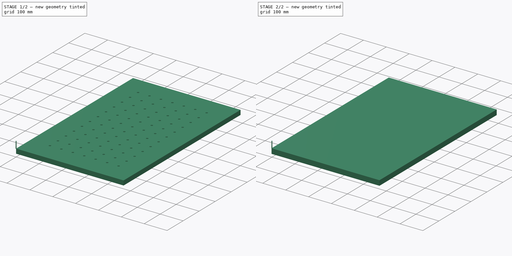
[diagram: build sequence overview — one tinted view per stage of 2, left to right]
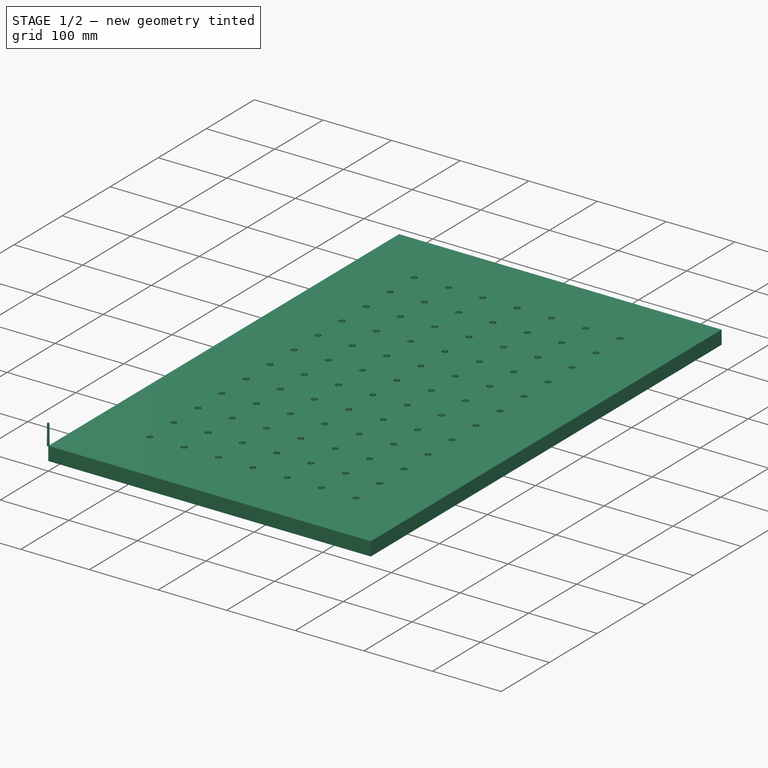
[diagram: stage 1 of 2 — iso view after this stage's code; geometry added in this stage tinted green]
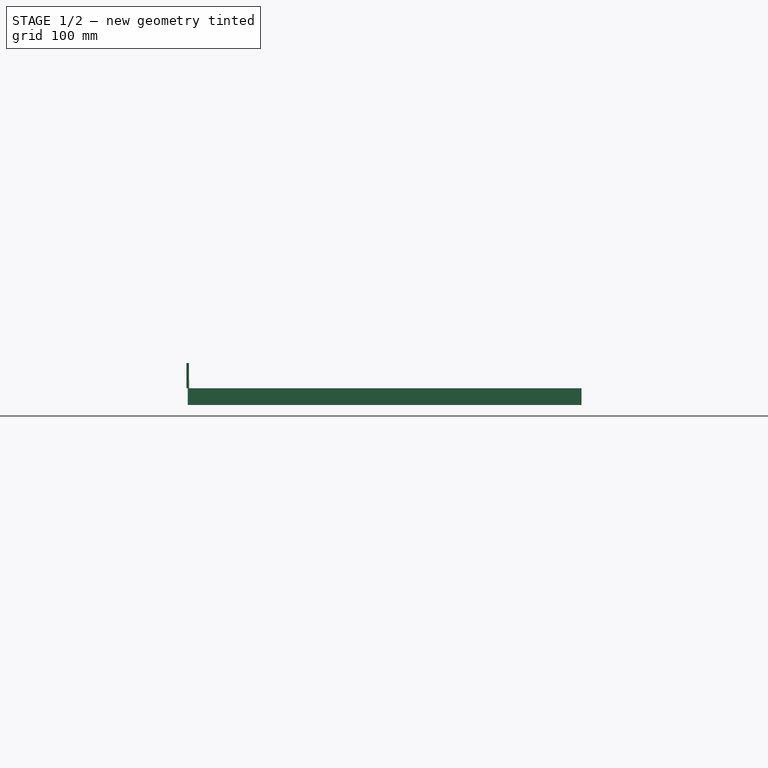
[diagram: stage 1 of 2 — front view after this stage's code; geometry added in this stage tinted green]
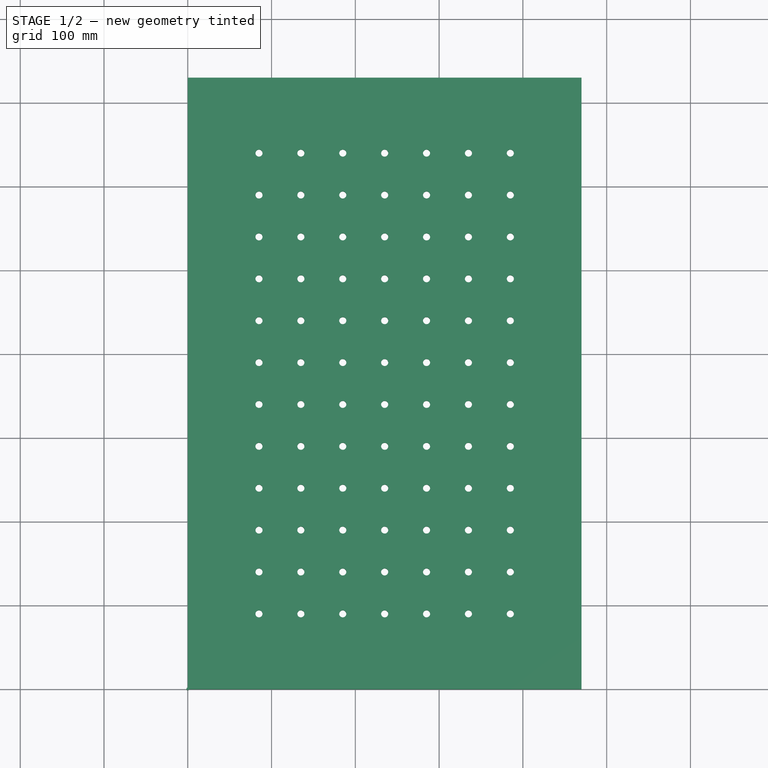
[diagram: stage 1 of 2 — top view after this stage's code; geometry added in this stage tinted green]
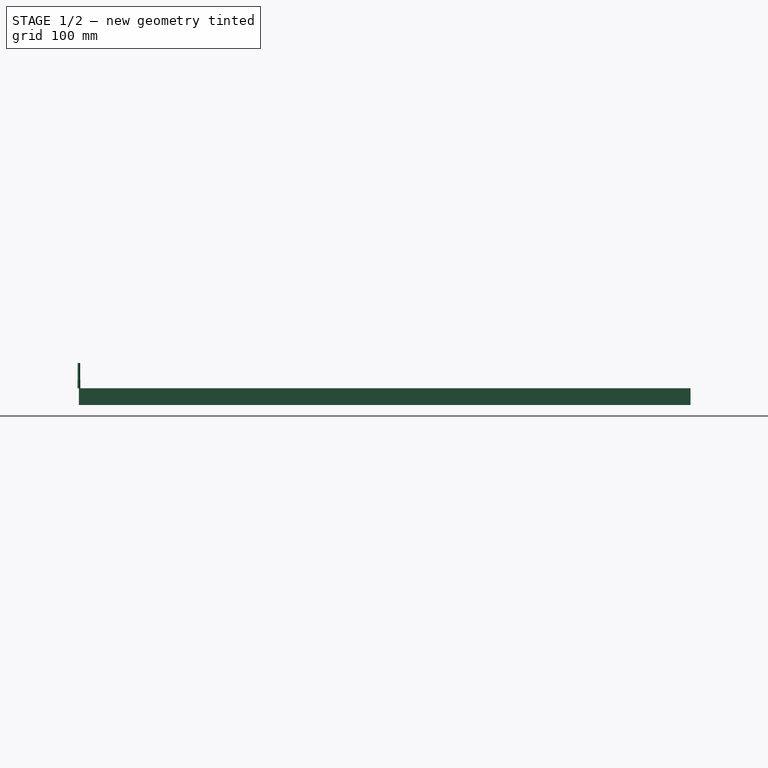
[diagram: stage 1 of 2 — right view after this stage's code; geometry added in this stage tinted green]
FCSTD DOCUMENT  (FreeCAD 0.20R29410 (Git))
Label: table_holes
License: All rights reserved
LicenseURL: http://en.wikipedia.org/wiki/All_rights_reserved
objects: Part::FeaturePython×3, App::DocumentObjectGroup×3, Path::FeaturePython×3, Sketcher::SketchObject×1, PartDesign::Pad×1, PartDesign::Body×1, App::FeaturePython×1
note: 8 computed .brp shape members not serialized (recipe doc carries the construction recipe); baked Part::Feature solids carry a one-line shape summary decoded from their .brp

FEATURE [Sketcher::SketchObject] Sketch
  FullyConstrained = true
  MapMode = 5
  Support = -> [XY_Plane]
  sketch-geometry (171):
    g0: LineSegment StartX=0 StartY=0 StartZ=0 EndX=470 EndY=0 EndZ=0
    g1: LineSegment StartX=470 StartY=0 StartZ=0 EndX=470 EndY=730 EndZ=0
    g2: LineSegment StartX=470 StartY=730 StartZ=0 EndX=0 EndY=730 EndZ=0
    g3: LineSegment StartX=0 StartY=730 StartZ=0 EndX=0 EndY=0 EndZ=0
    g4: Circle CenterX=85 CenterY=640 CenterZ=0 NormalX=0 NormalY=0 NormalZ=1 AngleXU=0 Radius=4.25
    g5: Circle CenterX=135 CenterY=640 CenterZ=0 NormalX=0 NormalY=0 NormalZ=1 AngleXU=0 Radius=4.25
    g6: LineSegment StartX=85 StartY=640 StartZ=0 EndX=135 EndY=640 EndZ=0
    g7: Circle CenterX=185 CenterY=640 CenterZ=0 NormalX=0 NormalY=0 NormalZ=1 AngleXU=0 Radius=4.25
    g8: LineSegment StartX=135 StartY=640 StartZ=0 EndX=185 EndY=640 EndZ=0
    g9: Circle CenterX=235 CenterY=640 CenterZ=0 NormalX=0 NormalY=0 NormalZ=1 AngleXU=0 Radius=4.25
    g10: LineSegment StartX=185 StartY=640 StartZ=0 EndX=235 EndY=640 EndZ=0
    g11: Circle CenterX=285 CenterY=640 CenterZ=0 NormalX=0 NormalY=0 NormalZ=1 AngleXU=0 Radius=4.25
    g12: LineSegment StartX=235 StartY=640 StartZ=0 EndX=285 EndY=640 EndZ=0
    g13: Circle CenterX=335 CenterY=640 CenterZ=0 NormalX=0 NormalY=0 NormalZ=1 AngleXU=0 Radius=4.25
    g14: LineSegment StartX=285 StartY=640 StartZ=0 EndX=335 EndY=640 EndZ=0
    g15: Circle CenterX=385 CenterY=640 CenterZ=0 NormalX=0 NormalY=0 NormalZ=1 AngleXU=0 Radius=4.25
    g16: LineSegment StartX=335 StartY=640 StartZ=0 EndX=385 EndY=640 EndZ=0
    g17: Circle CenterX=85 CenterY=590 CenterZ=0 NormalX=0 NormalY=0 NormalZ=1 AngleXU=0 Radius=4.25
    g18: LineSegment StartX=85 StartY=640 StartZ=0 EndX=85 EndY=590 EndZ=0
    g19: Circle CenterX=135 CenterY=590 CenterZ=0 NormalX=0 NormalY=0 NormalZ=1 AngleXU=0 Radius=4.25
    g20: LineSegment StartX=85 StartY=590 StartZ=0 EndX=135 EndY=590 EndZ=0
    g21: Circle CenterX=185 CenterY=590 CenterZ=0 NormalX=0 NormalY=0 NormalZ=1 AngleXU=0 Radius=4.25
    g22: LineSegment StartX=135 StartY=590 StartZ=0 EndX=185 EndY=590 EndZ=0
    g23: Circle CenterX=235 CenterY=590 CenterZ=0 NormalX=0 NormalY=0 NormalZ=1 AngleXU=0 Radius=4.25
    g24: LineSegment StartX=185 StartY=590 StartZ=0 EndX=235 EndY=590 EndZ=0
    g25: Circle CenterX=285 CenterY=590 CenterZ=0 NormalX=0 NormalY=0 NormalZ=1 AngleXU=0 Radius=4.25
    g26: LineSegment StartX=235 StartY=590 StartZ=0 EndX=285 EndY=590 EndZ=0
    g27: Circle CenterX=335 CenterY=590 CenterZ=0 NormalX=0 NormalY=0 NormalZ=1 AngleXU=0 Radius=4.25
    g28: LineSegment StartX=285 StartY=590 StartZ=0 EndX=335 EndY=590 EndZ=0
    g29: Circle CenterX=385 CenterY=590 CenterZ=0 NormalX=0 NormalY=0 NormalZ=1 AngleXU=0 Radius=4.25
    g30: LineSegment StartX=335 StartY=590 StartZ=0 EndX=385 EndY=590 EndZ=0
    g31: Circle CenterX=85 CenterY=540 CenterZ=0 NormalX=0 NormalY=0 NormalZ=1 AngleXU=0 Radius=4.25
    g32: LineSegment StartX=85 StartY=590 StartZ=0 EndX=85 EndY=540 EndZ=0
    g33: Circle CenterX=135 CenterY=540 CenterZ=0 NormalX=0 NormalY=0 NormalZ=1 AngleXU=0 Radius=4.25
    g34: LineSegment StartX=85 StartY=540 StartZ=0 EndX=135 EndY=540 EndZ=0
    g35: Circle CenterX=185 CenterY=540 CenterZ=0 NormalX=0 NormalY=0 NormalZ=1 AngleXU=0 Radius=4.25
    g36: LineSegment StartX=135 StartY=540 StartZ=0 EndX=185 EndY=540 EndZ=0
    g37: Circle CenterX=235 CenterY=540 CenterZ=0 NormalX=0 NormalY=0 NormalZ=1 AngleXU=0 Radius=4.25
    g38: LineSegment StartX=185 StartY=540 StartZ=0 EndX=235 EndY=540 EndZ=0
    g39: Circle CenterX=285 CenterY=540 CenterZ=0 NormalX=0 NormalY=0 NormalZ=1 AngleXU=0 Radius=4.25
    g40: LineSegment StartX=235 StartY=540 StartZ=0 EndX=285 EndY=540 EndZ=0
    g41: Circle CenterX=335 CenterY=540 CenterZ=0 NormalX=0 NormalY=0 NormalZ=1 AngleXU=0 Radius=4.25
    g42: LineSegment StartX=285 StartY=540 StartZ=0 EndX=335 EndY=540 EndZ=0
    g43: Circle CenterX=385 CenterY=540 CenterZ=0 NormalX=0 NormalY=0 NormalZ=1 AngleXU=0 Radius=4.25
    g44: LineSegment StartX=335 StartY=540 StartZ=0 EndX=385 EndY=540 EndZ=0
    g45: Circle CenterX=85 CenterY=490 CenterZ=0 NormalX=0 NormalY=0 NormalZ=1 AngleXU=0 Radius=4.25
    g46: LineSegment StartX=85 StartY=540 StartZ=0 EndX=85 EndY=490 EndZ=0
    g47: Circle CenterX=135 CenterY=490 CenterZ=0 NormalX=0 NormalY=0 NormalZ=1 AngleXU=0 Radius=4.25
    g48: LineSegment StartX=85 StartY=490 StartZ=0 EndX=135 EndY=490 EndZ=0
    g49: Circle CenterX=185 CenterY=490 CenterZ=0 NormalX=0 NormalY=0 NormalZ=1 AngleXU=0 Radius=4.25
    g50: LineSegment StartX=135 StartY=490 StartZ=0 EndX=185 EndY=490 EndZ=0
    g51: Circle CenterX=235 CenterY=490 CenterZ=0 NormalX=0 NormalY=0 NormalZ=1 AngleXU=0 Radius=4.25
    g52: LineSegment StartX=185 StartY=490 StartZ=0 EndX=235 EndY=490 EndZ=0
    g53: Circle CenterX=285 CenterY=490 CenterZ=0 NormalX=0 NormalY=0 NormalZ=1 AngleXU=0 Radius=4.25
    g54: LineSegment StartX=235 StartY=490 StartZ=0 EndX=285 EndY=490 EndZ=0
    g55: Circle CenterX=335 CenterY=490 CenterZ=0 NormalX=0 NormalY=0 NormalZ=1 AngleXU=0 Radius=4.25
    g56: LineSegment StartX=285 StartY=490 StartZ=0 EndX=335 EndY=490 EndZ=0
    g57: Circle CenterX=385 CenterY=490 CenterZ=0 NormalX=0 NormalY=0 NormalZ=1 AngleXU=0 Radius=4.25
    g58: LineSegment StartX=335 StartY=490 StartZ=0 EndX=385 EndY=490 EndZ=0
    g59: Circle CenterX=85 CenterY=440 CenterZ=0 NormalX=0 NormalY=0 NormalZ=1 AngleXU=0 Radius=4.25
    g60: LineSegment StartX=85 StartY=490 StartZ=0 EndX=85 EndY=440 EndZ=0
    g61: Circle CenterX=135 CenterY=440 CenterZ=0 NormalX=0 NormalY=0 NormalZ=1 AngleXU=0 Radius=4.25
    g62: LineSegment StartX=85 StartY=440 StartZ=0 EndX=135 EndY=440 EndZ=0
    g63: Circle CenterX=185 CenterY=440 CenterZ=0 NormalX=0 NormalY=0 NormalZ=1 AngleXU=0 Radius=4.25
    g64: LineSegment StartX=135 StartY=440 StartZ=0 EndX=185 EndY=440 EndZ=0
    g65: Circle CenterX=235 CenterY=440 CenterZ=0 NormalX=0 NormalY=0 NormalZ=1 AngleXU=0 Radius=4.25
    g66: LineSegment StartX=185 StartY=440 StartZ=0 EndX=235 EndY=440 EndZ=0
    g67: Circle CenterX=285 CenterY=440 CenterZ=0 NormalX=0 NormalY=0 NormalZ=1 AngleXU=0 Radius=4.25
    g68: LineSegment StartX=235 StartY=440 StartZ=0 EndX=285 EndY=440 EndZ=0
    g69: Circle CenterX=335 CenterY=440 CenterZ=0 NormalX=0 NormalY=0 NormalZ=1 AngleXU=0 Radius=4.25
    g70: LineSegment StartX=285 StartY=440 StartZ=0 EndX=335 EndY=440 EndZ=0
    g71: Circle CenterX=385 CenterY=440 CenterZ=0 NormalX=0 NormalY=0 NormalZ=1 AngleXU=0 Radius=4.25
    g72: LineSegment StartX=335 StartY=440 StartZ=0 EndX=385 EndY=440 EndZ=0
    g73: Circle CenterX=85 CenterY=390 CenterZ=0 NormalX=0 NormalY=0 NormalZ=1 AngleXU=0 Radius=4.25
    g74: LineSegment StartX=85 StartY=440 StartZ=0 EndX=85 EndY=390 EndZ=0
    g75: Circle CenterX=135 CenterY=390 CenterZ=0 NormalX=0 NormalY=0 NormalZ=1 AngleXU=0 Radius=4.25
    g76: LineSegment StartX=85 StartY=390 StartZ=0 EndX=135 EndY=390 EndZ=0
    g77: Circle CenterX=185 CenterY=390 CenterZ=0 NormalX=0 NormalY=0 NormalZ=1 AngleXU=0 Radius=4.25
    g78: LineSegment StartX=135 StartY=390 StartZ=0 EndX=185 EndY=390 EndZ=0
    g79: Circle CenterX=235 CenterY=390 CenterZ=0 NormalX=0 NormalY=0 NormalZ=1 AngleXU=0 Radius=4.25
    g80: LineSegment StartX=185 StartY=390 StartZ=0 EndX=235 EndY=390 EndZ=0
    g81: Circle CenterX=285 CenterY=390 CenterZ=0 NormalX=0 NormalY=0 NormalZ=1 AngleXU=0 Radius=4.25
    g82: LineSegment StartX=235 StartY=390 StartZ=0 EndX=285 EndY=390 EndZ=0
    g83: Circle CenterX=335 CenterY=390 CenterZ=0 NormalX=0 NormalY=0 NormalZ=1 AngleXU=0 Radius=4.25
    g84: LineSegment StartX=285 StartY=390 StartZ=0 EndX=335 EndY=390 EndZ=0
    g85: Circle CenterX=385 CenterY=390 CenterZ=0 NormalX=0 NormalY=0 NormalZ=1 AngleXU=0 Radius=4.25
    g86: LineSegment StartX=335 StartY=390 StartZ=0 EndX=385 EndY=390 EndZ=0
    g87: Circle CenterX=85 CenterY=340 CenterZ=0 NormalX=0 NormalY=0 NormalZ=1 AngleXU=0 Radius=4.25
    g88: LineSegment StartX=85 StartY=390 StartZ=0 EndX=85 EndY=340 EndZ=0
    g89: Circle CenterX=135 CenterY=340 CenterZ=0 NormalX=0 NormalY=0 NormalZ=1 AngleXU=0 Radius=4.25
    g90: LineSegment StartX=85 StartY=340 StartZ=0 EndX=135 EndY=340 EndZ=0
    g91: Circle CenterX=185 CenterY=340 CenterZ=0 NormalX=0 NormalY=0 NormalZ=1 AngleXU=0 Radius=4.25
    g92: LineSegment StartX=135 StartY=340 StartZ=0 EndX=185 EndY=340 EndZ=0
    g93: Circle CenterX=235 CenterY=340 CenterZ=0 NormalX=0 NormalY=0 NormalZ=1 AngleXU=0 Radius=4.25
    g94: LineSegment StartX=185 StartY=340 StartZ=0 EndX=235 EndY=340 EndZ=0
    g95: Circle CenterX=285 CenterY=340 CenterZ=0 NormalX=0 NormalY=0 NormalZ=1 AngleXU=0 Radius=4.25
    g96: LineSegment StartX=235 StartY=340 StartZ=0 EndX=285 EndY=340 EndZ=0
    g97: Circle CenterX=335 CenterY=340 CenterZ=0 NormalX=0 NormalY=0 NormalZ=1 AngleXU=0 Radius=4.25
    g98: LineSegment StartX=285 StartY=340 StartZ=0 EndX=335 EndY=340 EndZ=0
    g99: Circle CenterX=385 CenterY=340 CenterZ=0 NormalX=0 NormalY=0 NormalZ=1 AngleXU=0 Radius=4.25
    g100: LineSegment StartX=335 StartY=340 StartZ=0 EndX=385 EndY=340 EndZ=0
    g101: Circle CenterX=85 CenterY=290 CenterZ=0 NormalX=0 NormalY=0 NormalZ=1 AngleXU=0 Radius=4.25
    g102: LineSegment StartX=85 StartY=340 StartZ=0 EndX=85 EndY=290 EndZ=0
    g103: Circle CenterX=135 CenterY=290 CenterZ=0 NormalX=0 NormalY=0 NormalZ=1 AngleXU=0 Radius=4.25
    g104: LineSegment StartX=85 StartY=290 StartZ=0 EndX=135 EndY=290 EndZ=0
    g105: Circle CenterX=185 CenterY=290 CenterZ=0 NormalX=0 NormalY=0 NormalZ=1 AngleXU=0 Radius=4.25
    g106: LineSegment StartX=135 StartY=290 StartZ=0 EndX=185 EndY=290 EndZ=0
    g107: Circle CenterX=235 CenterY=290 CenterZ=0 NormalX=0 NormalY=0 NormalZ=1 AngleXU=0 Radius=4.25
    g108: LineSegment StartX=185 StartY=290 StartZ=0 EndX=235 EndY=290 EndZ=0
    g109: Circle CenterX=285 CenterY=290 CenterZ=0 NormalX=0 NormalY=0 NormalZ=1 AngleXU=0 Radius=4.25
    g110: LineSegment StartX=235 StartY=290 StartZ=0 EndX=285 EndY=290 EndZ=0
    g111: Circle CenterX=335 CenterY=290 CenterZ=0 NormalX=0 NormalY=0 NormalZ=1 AngleXU=0 Radius=4.25
    g112: LineSegment StartX=285 StartY=290 StartZ=0 EndX=335 EndY=290 EndZ=0
    g113: Circle CenterX=385 CenterY=290 CenterZ=0 NormalX=0 NormalY=0 NormalZ=1 AngleXU=0 Radius=4.25
    g114: LineSegment StartX=335 StartY=290 StartZ=0 EndX=385 EndY=290 EndZ=0
    g115: Circle CenterX=85 CenterY=240 CenterZ=0 NormalX=0 NormalY=0 NormalZ=1 AngleXU=0 Radius=4.25
    g116: LineSegment StartX=85 StartY=290 StartZ=0 EndX=85 EndY=240 EndZ=0
    g117: Circle CenterX=135 CenterY=240 CenterZ=0 NormalX=0 NormalY=0 NormalZ=1 AngleXU=0 Radius=4.25
    g118: LineSegment StartX=85 StartY=240 StartZ=0 EndX=135 EndY=240 EndZ=0
    g119: Circle CenterX=185 CenterY=240 CenterZ=0 NormalX=0 NormalY=0 NormalZ=1 AngleXU=0 Radius=4.25
    g120: LineSegment StartX=135 StartY=240 StartZ=0 EndX=185 EndY=240 EndZ=0
    g121: Circle CenterX=235 CenterY=240 CenterZ=0 NormalX=0 NormalY=0 NormalZ=1 AngleXU=0 Radius=4.25
    g122: LineSegment StartX=185 StartY=240 StartZ=0 EndX=235 EndY=240 EndZ=0
    g123: Circle CenterX=285 CenterY=240 CenterZ=0 NormalX=0 NormalY=0 NormalZ=1 AngleXU=0 Radius=4.25
    g124: LineSegment StartX=235 StartY=240 StartZ=0 EndX=285 EndY=240 EndZ=0
    g125: Circle CenterX=335 CenterY=240 CenterZ=0 NormalX=0 NormalY=0 NormalZ=1 AngleXU=0 Radius=4.25
    g126: LineSegment StartX=285 StartY=240 StartZ=0 EndX=335 EndY=240 EndZ=0
    g127: Circle CenterX=385 CenterY=240 CenterZ=0 NormalX=0 NormalY=0 NormalZ=1 AngleXU=0 Radius=4.25
    g128: LineSegment StartX=335 StartY=240 StartZ=0 EndX=385 EndY=240 EndZ=0
    g129: Circle CenterX=85 CenterY=190 CenterZ=0 NormalX=0 NormalY=0 NormalZ=1 AngleXU=0 Radius=4.25
    g130: LineSegment StartX=85 StartY=240 StartZ=0 EndX=85 EndY=190 EndZ=0
    g131: Circle CenterX=135 CenterY=190 CenterZ=0 NormalX=0 NormalY=0 NormalZ=1 AngleXU=0 Radius=4.25
    g132: LineSegment StartX=85 StartY=190 StartZ=0 EndX=135 EndY=190 EndZ=0
    g133: Circle CenterX=185 CenterY=190 CenterZ=0 NormalX=0 NormalY=0 NormalZ=1 AngleXU=0 Radius=4.25
    g134: LineSegment StartX=135 StartY=190 StartZ=0 EndX=185 EndY=190 EndZ=0
    g135: Circle CenterX=235 CenterY=190 CenterZ=0 NormalX=0 NormalY=0 NormalZ=1 AngleXU=0 Radius=4.25
    g136: LineSegment StartX=185 StartY=190 StartZ=0 EndX=235 EndY=190 EndZ=0
    g137: Circle CenterX=285 CenterY=190 CenterZ=0 NormalX=0 NormalY=0 NormalZ=1 AngleXU=0 Radius=4.25
    g138: LineSegment StartX=235 StartY=190 StartZ=0 EndX=285 EndY=190 EndZ=0
    g139: Circle CenterX=335 CenterY=190 CenterZ=0 NormalX=0 NormalY=0 NormalZ=1 AngleXU=0 Radius=4.25
    g140: LineSegment StartX=285 StartY=190 StartZ=0 EndX=335 EndY=190 EndZ=0
    g141: Circle CenterX=385 CenterY=190 CenterZ=0 NormalX=0 NormalY=0 NormalZ=1 AngleXU=0 Radius=4.25
    g142: LineSegment StartX=335 StartY=190 StartZ=0 EndX=385 EndY=190 EndZ=0
    g143: Circle CenterX=85 CenterY=140 CenterZ=0 NormalX=0 NormalY=0 NormalZ=1 AngleXU=0 Radius=4.25
    g144: LineSegment StartX=85 StartY=190 StartZ=0 EndX=85 EndY=140 EndZ=0
    g145: Circle CenterX=135 CenterY=140 CenterZ=0 NormalX=0 NormalY=0 NormalZ=1 AngleXU=0 Radius=4.25
    g146: LineSegment StartX=85 StartY=140 StartZ=0 EndX=135 EndY=140 EndZ=0
    g147: Circle CenterX=185 CenterY=140 CenterZ=0 NormalX=0 NormalY=0 NormalZ=1 AngleXU=0 Radius=4.25
    g148: LineSegment StartX=135 StartY=140 StartZ=0 EndX=185 EndY=140 EndZ=0
    g149: Circle CenterX=235 CenterY=140 CenterZ=0 NormalX=0 NormalY=0 NormalZ=1 AngleXU=0 Radius=4.25
    g150: LineSegment StartX=185 StartY=140 StartZ=0 EndX=235 EndY=140 EndZ=0
    g151: Circle CenterX=285 CenterY=140 CenterZ=0 NormalX=0 NormalY=0 NormalZ=1 AngleXU=0 Radius=4.25
    g152: LineSegment StartX=235 StartY=140 StartZ=0 EndX=285 EndY=140 EndZ=0
    g153: Circle CenterX=335 CenterY=140 CenterZ=0 NormalX=0 NormalY=0 NormalZ=1 AngleXU=0 Radius=4.25
    g154: LineSegment StartX=285 StartY=140 StartZ=0 EndX=335 EndY=140 EndZ=0
    g155: Circle CenterX=385 CenterY=140 CenterZ=0 NormalX=0 NormalY=0 NormalZ=1 AngleXU=0 Radius=4.25
    g156: LineSegment StartX=335 StartY=140 StartZ=0 EndX=385 EndY=140 EndZ=0
    g157: Circle CenterX=85 CenterY=90 CenterZ=0 NormalX=0 NormalY=0 NormalZ=1 AngleXU=0 Radius=4.25
    g158: LineSegment StartX=85 StartY=140 StartZ=0 EndX=85 EndY=90 EndZ=0
    g159: Circle CenterX=135 CenterY=90 CenterZ=0 NormalX=0 NormalY=0 NormalZ=1 AngleXU=0 Radius=4.25
    g160: LineSegment StartX=85 StartY=90 StartZ=0 EndX=135 EndY=90 EndZ=0
    g161: Circle CenterX=185 CenterY=90 CenterZ=0 NormalX=0 NormalY=0 NormalZ=1 AngleXU=0 Radius=4.25
    g162: LineSegment StartX=135 StartY=90 StartZ=0 EndX=185 EndY=90 EndZ=0
    g163: Circle CenterX=235 CenterY=90 CenterZ=0 NormalX=0 NormalY=0 NormalZ=1 AngleXU=0 Radius=4.25
    g164: LineSegment StartX=185 StartY=90 StartZ=0 EndX=235 EndY=90 EndZ=0
    g165: Circle CenterX=285 CenterY=90 CenterZ=0 NormalX=0 NormalY=0 NormalZ=1 AngleXU=0 Radius=4.25
    g166: LineSegment StartX=235 StartY=90 StartZ=0 EndX=285 EndY=90 EndZ=0
    g167: Circle CenterX=335 CenterY=90 CenterZ=0 NormalX=0 NormalY=0 NormalZ=1 AngleXU=0 Radius=4.25
    g168: LineSegment StartX=285 StartY=90 StartZ=0 EndX=335 EndY=90 EndZ=0
    g169: Circle CenterX=385 CenterY=90 CenterZ=0 NormalX=0 NormalY=0 NormalZ=1 AngleXU=0 Radius=4.25
    g170: LineSegment StartX=335 StartY=90 StartZ=0 EndX=385 EndY=90 EndZ=0
  constraints (429):
    c: Coincident(g0,g1)
    c: Coincident(g1,g2)
    c: Coincident(g2,g3)
    c: Coincident(g3,g0)
    c: Horizontal(g0)
    c: Horizontal(g2)
    c: Vertical(g1)
    c: Vertical(g3)
    c: Coincident(g0,g-1)
    c: DistanceY(g1,g1) = 730
    c: DistanceX(g2,g2) = 470
    c: DistanceX(g0,g4) = 85
    c: Diameter(g4) = 8.5
    c: DistanceY(g4,g2) = 90
    c: Diameter(g5) = 8.5
    c: Coincident(g4,g6)
    c: Coincident(g5,g6)
    c: Distance(g6) = 50
    c: Angle(g6) = 0
    c: Diameter(g7) = 8.5
    c: Coincident(g5,g8)
    c: Coincident(g7,g8)
    c: Equal(g6,g8)
    c: Parallel(g8,g6)
    c: Diameter(g9) = 8.5
    c: Coincident(g7,g10)
    c: Coincident(g9,g10)
    c: Equal(g6,g10)
    c: Parallel(g10,g6)
    c: Diameter(g11) = 8.5
    c: Coincident(g9,g12)
    c: Coincident(g11,g12)
    c: Equal(g6,g12)
    c: Parallel(g12,g6)
    c: Diameter(g13) = 8.5
    c: Coincident(g11,g14)
    c: Coincident(g13,g14)
    c: Equal(g6,g14)
    c: Parallel(g14,g6)
    c: Diameter(g15) = 8.5
    c: Coincident(g13,g16)
    c: Coincident(g15,g16)
    c: Equal(g6,g16)
    c: Parallel(g16,g6)
    c: Diameter(g17) = 8.5
    c: Coincident(g4,g18)
    c: Coincident(g17,g18)
    c: Equal(g18,g6)
    c: Perpendicular(g18,g6)
    c: Diameter(g19) = 8.5
    c: Coincident(g17,g20)
    c: Coincident(g19,g20)
    c: Equal(g6,g20)
    c: Parallel(g20,g6)
    c: Diameter(g21) = 8.5
    c: Coincident(g19,g22)
    c: Coincident(g21,g22)
    c: Equal(g6,g22)
    c: Parallel(g22,g6)
    c: Diameter(g23) = 8.5
    c: Coincident(g21,g24)
    c: Coincident(g23,g24)
    c: Equal(g6,g24)
    c: Parallel(g24,g6)
    c: Diameter(g25) = 8.5
    c: Coincident(g23,g26)
    c: Coincident(g25,g26)
    c: Equal(g6,g26)
    c: Parallel(g26,g6)
    c: Diameter(g27) = 8.5
    c: Coincident(g25,g28)
    c: Coincident(g27,g28)
    c: Equal(g6,g28)
    c: Parallel(g28,g6)
    c: Diameter(g29) = 8.5
    c: Coincident(g27,g30)
    c: Coincident(g29,g30)
    c: Equal(g6,g30)
    c: Parallel(g30,g6)
    c: Diameter(g31) = 8.5
    c: Coincident(g17,g32)
    c: Coincident(g31,g32)
    c: Equal(g18,g32)
    c: Perpendicular(g32,g6)
    c: Diameter(g33) = 8.5
    c: Coincident(g31,g34)
    c: Coincident(g33,g34)
    c: Equal(g6,g34)
    c: Parallel(g34,g6)
    c: Diameter(g35) = 8.5
    c: Coincident(g33,g36)
    c: Coincident(g35,g36)
    c: Equal(g6,g36)
    c: Parallel(g36,g6)
    c: Diameter(g37) = 8.5
    c: Coincident(g35,g38)
    c: Coincident(g37,g38)
    c: Equal(g6,g38)
    c: Parallel(g38,g6)
    c: Diameter(g39) = 8.5
    c: Coincident(g37,g40)
    c: Coincident(g39,g40)
    c: Equal(g6,g40)
    c: Parallel(g40,g6)
    c: Diameter(g41) = 8.5
    c: Coincident(g39,g42)
    c: Coincident(g41,g42)
    c: Equal(g6,g42)
    c: Parallel(g42,g6)
    c: Diameter(g43) = 8.5
    c: Coincident(g41,g44)
    c: Coincident(g43,g44)
    c: Equal(g6,g44)
    c: Parallel(g44,g6)
    c: Diameter(g45) = 8.5
    c: Coincident(g31,g46)
    c: Coincident(g45,g46)
    c: Equal(g18,g46)
    c: Perpendicular(g46,g6)
    c: Diameter(g47) = 8.5
    c: Coincident(g45,g48)
    c: Coincident(g47,g48)
    c: Equal(g6,g48)
    c: Parallel(g48,g6)
    c: Diameter(g49) = 8.5
    c: Coincident(g47,g50)
    c: Coincident(g49,g50)
    c: Equal(g6,g50)
    c: Parallel(g50,g6)
    c: Diameter(g51) = 8.5
    c: Coincident(g49,g52)
    c: Coincident(g51,g52)
    c: Equal(g6,g52)
    c: Parallel(g52,g6)
    c: Diameter(g53) = 8.5
    c: Coincident(g51,g54)
    c: Coincident(g53,g54)
    c: Equal(g6,g54)
    c: Parallel(g54,g6)
    c: Diameter(g55) = 8.5
    c: Coincident(g53,g56)
    c: Coincident(g55,g56)
    c: Equal(g6,g56)
    c: Parallel(g56,g6)
    c: Diameter(g57) = 8.5
    c: Coincident(g55,g58)
    c: Coincident(g57,g58)
    c: Equal(g6,g58)
    c: Parallel(g58,g6)
    c: Diameter(g59) = 8.5
    c: Coincident(g45,g60)
    c: Coincident(g59,g60)
    c: Equal(g18,g60)
    c: Perpendicular(g60,g6)
    c: Diameter(g61) = 8.5
    c: Coincident(g59,g62)
    c: Coincident(g61,g62)
    c: Equal(g6,g62)
    c: Parallel(g62,g6)
    c: Diameter(g63) = 8.5
    c: Coincident(g61,g64)
    c: Coincident(g63,g64)
    c: Equal(g6,g64)
    c: Parallel(g64,g6)
    c: Diameter(g65) = 8.5
    c: Coincident(g63,g66)
    c: Coincident(g65,g66)
    c: Equal(g6,g66)
    c: Parallel(g66,g6)
    c: Diameter(g67) = 8.5
    c: Coincident(g65,g68)
    c: Coincident(g67,g68)
    c: Equal(g6,g68)
    c: Parallel(g68,g6)
    c: Diameter(g69) = 8.5
    c: Coincident(g67,g70)
    c: Coincident(g69,g70)
    c: Equal(g6,g70)
    c: Parallel(g70,g6)
    c: Diameter(g71) = 8.5
    c: Coincident(g69,g72)
    c: Coincident(g71,g72)
    c: Equal(g6,g72)
    c: Parallel(g72,g6)
    c: Diameter(g73) = 8.5
    c: Coincident(g59,g74)
    c: Coincident(g73,g74)
    c: Equal(g18,g74)
    c: Perpendicular(g74,g6)
    c: Diameter(g75) = 8.5
    c: Coincident(g73,g76)
    c: Coincident(g75,g76)
    c: Equal(g6,g76)
    c: Parallel(g76,g6)
    c: Diameter(g77) = 8.5
    c: Coincident(g75,g78)
    c: Coincident(g77,g78)
    c: Equal(g6,g78)
    c: Parallel(g78,g6)
    c: Diameter(g79) = 8.5
    c: Coincident(g77,g80)
    c: Coincident(g79,g80)
    c: Equal(g6,g80)
    c: Parallel(g80,g6)
    c: Diameter(g81) = 8.5
    c: Coincident(g79,g82)
    c: Coincident(g81,g82)
    c: Equal(g6,g82)
    c: Parallel(g82,g6)
    c: Diameter(g83) = 8.5
    c: Coincident(g81,g84)
    c: Coincident(g83,g84)
    c: Equal(g6,g84)
    c: Parallel(g84,g6)
    c: Diameter(g85) = 8.5
    c: Coincident(g83,g86)
    c: Coincident(g85,g86)
    c: Equal(g6,g86)
    c: Parallel(g86,g6)
    c: Diameter(g87) = 8.5
    c: Coincident(g73,g88)
    c: Coincident(g87,g88)
    c: Equal(g18,g88)
    c: Perpendicular(g88,g6)
    c: Diameter(g89) = 8.5
    c: Coincident(g87,g90)
    c: Coincident(g89,g90)
    c: Equal(g6,g90)
    c: Parallel(g90,g6)
    c: Diameter(g91) = 8.5
    c: Coincident(g89,g92)
    c: Coincident(g91,g92)
    c: Equal(g6,g92)
    c: Parallel(g92,g6)
    c: Diameter(g93) = 8.5
    c: Coincident(g91,g94)
    c: Coincident(g93,g94)
    c: Equal(g6,g94)
    c: Parallel(g94,g6)
    c: Diameter(g95) = 8.5
    c: Coincident(g93,g96)
    c: Coincident(g95,g96)
    c: Equal(g6,g96)
    c: Parallel(g96,g6)
    c: Diameter(g97) = 8.5
    c: Coincident(g95,g98)
    c: Coincident(g97,g98)
    c: Equal(g6,g98)
    c: Parallel(g98,g6)
    c: Diameter(g99) = 8.5
    c: Coincident(g97,g100)
    c: Coincident(g99,g100)
    c: Equal(g6,g100)
    c: Parallel(g100,g6)
    c: Diameter(g101) = 8.5
    c: Coincident(g87,g102)
    c: Coincident(g101,g102)
    c: Equal(g18,g102)
    c: Perpendicular(g102,g6)
    c: Diameter(g103) = 8.5
    c: Coincident(g101,g104)
    c: Coincident(g103,g104)
    c: Equal(g6,g104)
    c: Parallel(g104,g6)
    c: Diameter(g105) = 8.5
    c: Coincident(g103,g106)
    c: Coincident(g105,g106)
    c: Equal(g6,g106)
    c: Parallel(g106,g6)
    c: Diameter(g107) = 8.5
    c: Coincident(g105,g108)
    c: Coincident(g107,g108)
    c: Equal(g6,g108)
    c: Parallel(g108,g6)
    c: Diameter(g109) = 8.5
    c: Coincident(g107,g110)
    c: Coincident(g109,g110)
    c: Equal(g6,g110)
    c: Parallel(g110,g6)
    c: Diameter(g111) = 8.5
    c: Coincident(g109,g112)
    c: Coincident(g111,g112)
    c: Equal(g6,g112)
    c: Parallel(g112,g6)
    c: Diameter(g113) = 8.5
    c: Coincident(g111,g114)
    c: Coincident(g113,g114)
    c: Equal(g6,g114)
    c: Parallel(g114,g6)
    c: Diameter(g115) = 8.5
    c: Coincident(g101,g116)
    c: Coincident(g115,g116)
    c: Equal(g18,g116)
    c: Perpendicular(g116,g6)
    c: Diameter(g117) = 8.5
    c: Coincident(g115,g118)
    c: Coincident(g117,g118)
    c: Equal(g6,g118)
    c: Parallel(g118,g6)
    c: Diameter(g119) = 8.5
    c: Coincident(g117,g120)
    c: Coincident(g119,g120)
    c: Equal(g6,g120)
    c: Parallel(g120,g6)
    c: Diameter(g121) = 8.5
    c: Coincident(g119,g122)
    c: Coincident(g121,g122)
    c: Equal(g6,g122)
    c: Parallel(g122,g6)
    c: Diameter(g123) = 8.5
    c: Coincident(g121,g124)
    c: Coincident(g123,g124)
    c: Equal(g6,g124)
    c: Parallel(g124,g6)
    c: Diameter(g125) = 8.5
    c: Coincident(g123,g126)
    c: Coincident(g125,g126)
    c: Equal(g6,g126)
    c: Parallel(g126,g6)
    c: Diameter(g127) = 8.5
    c: Coincident(g125,g128)
    c: Coincident(g127,g128)
    c: Equal(g6,g128)
    c: Parallel(g128,g6)
    c: Diameter(g129) = 8.5
    c: Coincident(g115,g130)
    c: Coincident(g129,g130)
    c: Equal(g18,g130)
    c: Perpendicular(g130,g6)
    c: Diameter(g131) = 8.5
    c: Coincident(g129,g132)
    c: Coincident(g131,g132)
    c: Equal(g6,g132)
    c: Parallel(g132,g6)
    c: Diameter(g133) = 8.5
    c: Coincident(g131,g134)
    c: Coincident(g133,g134)
    c: Equal(g6,g134)
    c: Parallel(g134,g6)
    c: Diameter(g135) = 8.5
    c: Coincident(g133,g136)
    c: Coincident(g135,g136)
    c: Equal(g6,g136)
    c: Parallel(g136,g6)
    c: Diameter(g137) = 8.5
    c: Coincident(g135,g138)
    c: Coincident(g137,g138)
    c: Equal(g6,g138)
    c: Parallel(g138,g6)
    c: Diameter(g139) = 8.5
    c: Coincident(g137,g140)
    c: Coincident(g139,g140)
    c: Equal(g6,g140)
    c: Parallel(g140,g6)
    c: Diameter(g141) = 8.5
    c: Coincident(g139,g142)
    c: Coincident(g141,g142)
    c: Equal(g6,g142)
    c: Parallel(g142,g6)
    c: Diameter(g143) = 8.5
    c: Coincident(g129,g144)
    c: Coincident(g143,g144)
    c: Equal(g18,g144)
    c: Perpendicular(g144,g6)
    c: Diameter(g145) = 8.5
    c: Coincident(g143,g146)
    c: Coincident(g145,g146)
    c: Equal(g6,g146)
    c: Parallel(g146,g6)
    c: Diameter(g147) = 8.5
    c: Coincident(g145,g148)
    c: Coincident(g147,g148)
    c: Equal(g6,g148)
    c: Parallel(g148,g6)
    c: Diameter(g149) = 8.5
    c: Coincident(g147,g150)
    c: Coincident(g149,g150)
    c: Equal(g6,g150)
    c: Parallel(g150,g6)
    c: Diameter(g151) = 8.5
    c: Coincident(g149,g152)
    c: Coincident(g151,g152)
    c: Equal(g6,g152)
    c: Parallel(g152,g6)
    c: Diameter(g153) = 8.5
    c: Coincident(g151,g154)
    c: Coincident(g153,g154)
    c: Equal(g6,g154)
    c: Parallel(g154,g6)
    c: Diameter(g155) = 8.5
    c: Coincident(g153,g156)
    c: Coincident(g155,g156)
    c: Equal(g6,g156)
    c: Parallel(g156,g6)
    c: Diameter(g157) = 8.5
    c: Coincident(g143,g158)
    c: Coincident(g157,g158)
    c: Equal(g18,g158)
    c: Perpendicular(g158,g6)
    c: Diameter(g159) = 8.5
    c: Coincident(g157,g160)
    c: Coincident(g159,g160)
    c: Equal(g6,g160)
    c: Parallel(g160,g6)
    c: Diameter(g161) = 8.5
    c: Coincident(g159,g162)
    c: Coincident(g161,g162)
    c: Equal(g6,g162)
    c: Parallel(g162,g6)
    c: Diameter(g163) = 8.5
    c: Coincident(g161,g164)
    c: Coincident(g163,g164)
    c: Equal(g6,g164)
    c: Parallel(g164,g6)
    c: Diameter(g165) = 8.5
    c: Coincident(g163,g166)
    c: Coincident(g165,g166)
    c: Equal(g6,g166)
    c: Parallel(g166,g6)
    c: Diameter(g167) = 8.5
    c: Coincident(g165,g168)
    c: Coincident(g167,g168)
    c: Equal(g6,g168)
    c: Parallel(g168,g6)
    c: Diameter(g169) = 8.5
    c: Coincident(g167,g170)
    c: Coincident(g169,g170)
    c: Equal(g6,g170)
    c: Parallel(g170,g6)
FEATURE [PartDesign::Pad] Pad
  Direction = (0,0,1)
  Length = 20
  Length2 = 10
  Profile = -> Sketch
  ReferenceAxis = -> Sketch [N_Axis]
  Reversed = true
  Type = 0
FEATURE [Part::FeaturePython] ToolBit001  label="3_endmill004"  # Path/CAM toolbit (typed FeaturePython)
  BitPropertyNames = Chipload | CuttingEdgeHeight | Diameter | Flutes | Length | Material | ShankDiameter | SpindleDirection
  BitShape = <userpath>/freecad_toolbit/Shape/endmill.fcstd
  Chipload = 0
  CuttingEdgeHeight = 10
  Diameter = 3.17
  File = <userpath>/freecad_toolbit/Bit/3_enmill.fctb
  Flutes = 0
  Length = 30
  Material = 0
  ShankDiameter = 3
  ShapeName = endmill
  SpindleDirection = 0
FEATURE [Path::FeaturePython] __endmill004  label="3_endmill005"  # Path/CAM operation (typed FeaturePython)
  HorizFeed = 8.33333
  HorizRapid = 0
  SpindleDir = 0
  SpindleSpeed = 22000
  Tool = -> ToolBit001
  ToolNumber = 2
  VertFeed = 8.33333
  VertRapid = 0
  expr: HorizRapid = SetupSheet.HorizRapid
  expr: VertRapid = SetupSheet.VertRapid
FEATURE [App::DocumentObjectGroup] Tools
  Group = -> [__endmill004]
FEATURE [Path::FeaturePython] Profile  # Path/CAM operation (typed FeaturePython)
  Active = true
  AreaParams:
    Tolerance = 1e-07
    FitArcs = True
    Simplify = False
    CleanDistance = 0.0
    Accuracy = 0.01
    Unit = 1.0
    MinArcPoints = 4
    MaxArcPoints = 100
    ClipperScale = 10000000.0
    Fill = 0
    Coplanar = 0
    Reorient = True
    Outline = False
    Explode = False
    OpenMode = 0
    Deflection = 0.01
    SubjectFill = 0
    ClipFill = 0
    Offset = -1.585
    ExtraPass = 0
    Stepover = 0.0
    LastStepover = 0.0
    JoinType = 0
    EndType = 0
    MiterLimit = 2.0
    RoundPrecision = 0.0
    PocketMode = 0
    ToolRadius = 1.0
    PocketExtraOffset = 0.0
    PocketStepover = 0.0
    PocketLastStepover = 0.0
    FromCenter = False
    Angle = 45.0
    AngleShift = 0.0
    Shift = 0.0
    Thicken = False
    SectionCount = -1
    Stepdown = 1.0
    SectionOffset = 0.0
    SectionTolerance = 1e-06
    SectionMode = 2
    Project = False
  Base = -> [Clone]
  ClearanceHeight = 6
  CoolantMode = 0
  CycleTime = 05:22:16
  Direction = 0
  FinalDepth = -20
  HandleMultipleFeatures = 0
  JoinType = 0
  MiterLimit = 0.1
  OffsetExtra = 0
  OpFinalDepth = -20
  OpStartDepth = 1
  OpStockZMax = 1
  OpStockZMin = -21
  OpToolDiameter = 3.17
  PathParams = {'orientation': 1, 'feedrate': 8.333333333333334, 'feedrate_v': 8.333333333333334, 'verbose': True, 'resume_height': 4.0, 'retraction': 6.0, 'return_end': True, 'preamble': False}
  SafeHeight = 4
  Side = 1
  SplitArcs = false
  StartDepth = 1
  StartPoint = (0,0,0)
  StepDown = 1
  ToolController = -> __endmill004
  UseComp = true
  UseStartPoint = false
  processCircles = false
  processHoles = false
  processPerimeter = true
  expr: ClearanceHeight = OpStockZMax + SetupSheet.ClearanceHeightOffset
  expr: FinalDepth = OpFinalDepth
  expr: SafeHeight = OpStockZMax + SetupSheet.SafeHeightOffset
  expr: StartDepth = OpStartDepth
  expr: StepDown = 1
FEATURE [App::DocumentObjectGroup] Operations
  Group = -> [Profile]
FEATURE [Path::FeaturePython] Job  # Path/CAM operation (typed FeaturePython)
  CycleTime = 05:22:16
  Fixtures = G54
  GeometryTolerance = 0.01
  JobType = 0
  Model = -> Model
  Operations = -> Operations
  OrderOutputBy = 0
  PostProcessor = 8
  SetupSheet = -> SetupSheet
  SplitOutput = false
  Stock = -> Stock
  Tools = -> Tools
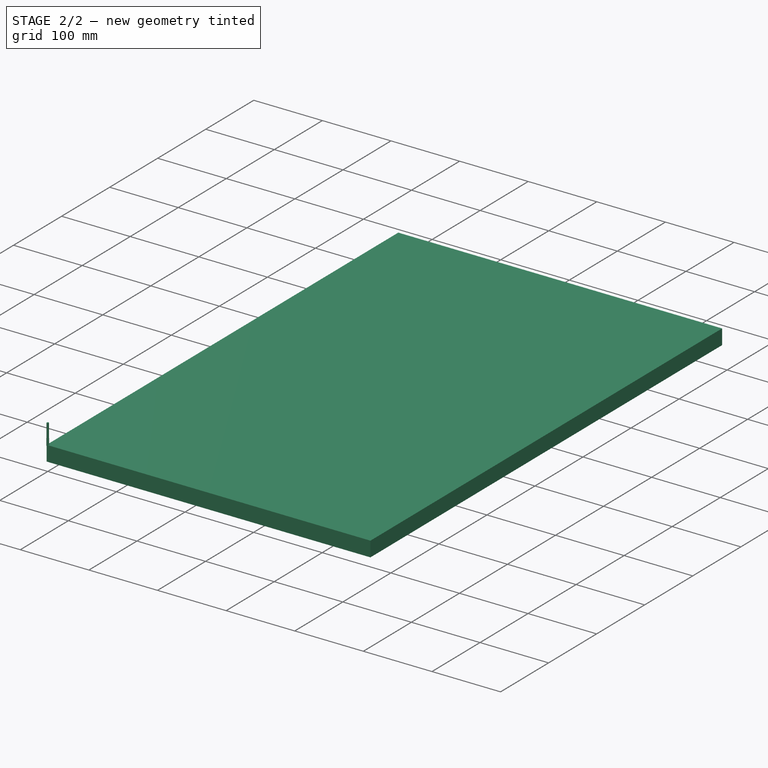
[diagram: stage 2 of 2 — iso view after this stage's code; geometry added in this stage tinted green]
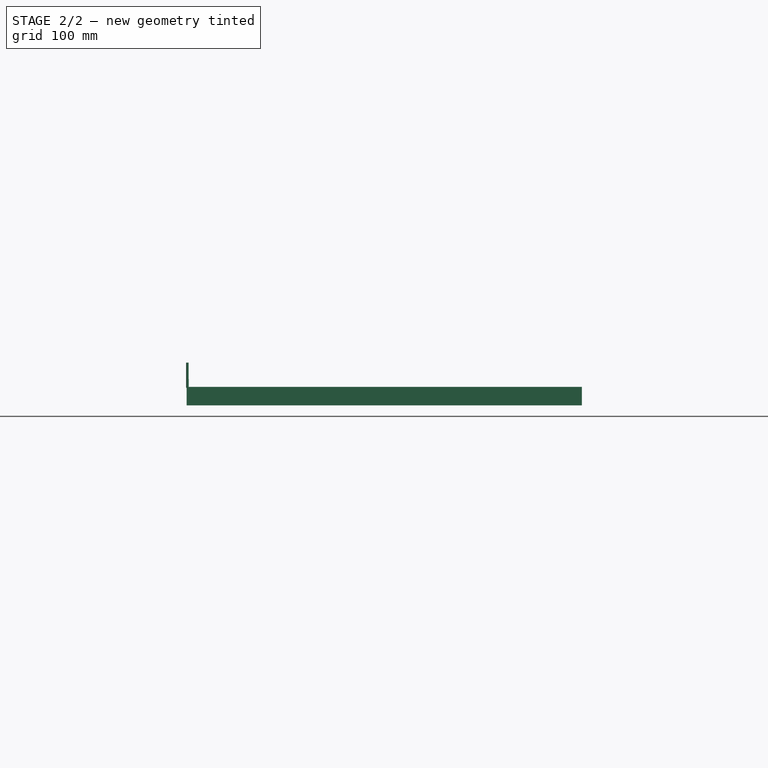
[diagram: stage 2 of 2 — front view after this stage's code; geometry added in this stage tinted green]
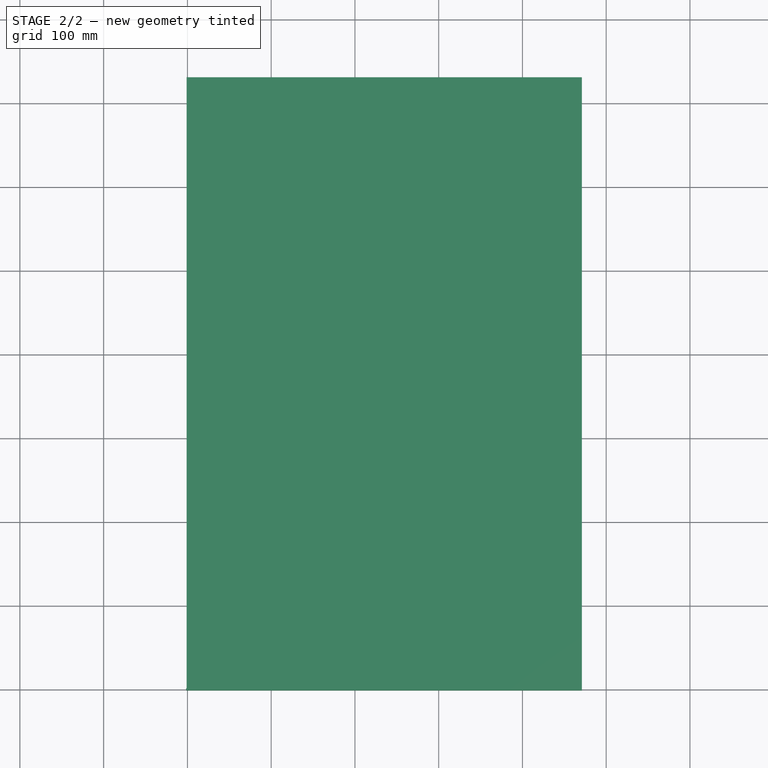
[diagram: stage 2 of 2 — top view after this stage's code; geometry added in this stage tinted green]
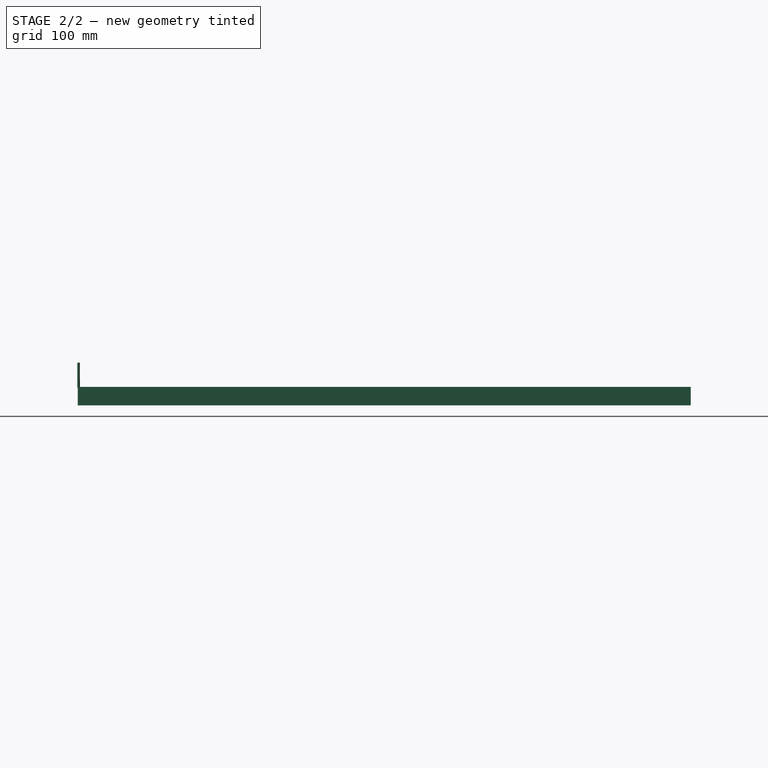
[diagram: stage 2 of 2 — right view after this stage's code; geometry added in this stage tinted green]
FEATURE [PartDesign::Body] Body
  Group = -> [Sketch,Pad]
  Origin = -> Origin
  Tip = -> Pad
FEATURE [App::FeaturePython] SetupSheet  # Path/CAM operation (typed FeaturePython)
  ClearanceHeightExpression = OpStockZMax+SetupSheet.ClearanceHeightOffset
  ClearanceHeightOffset = 5
  CoolantMode = 0
  CoolantModes = None | Flood | Mist
  FinalDepthExpression = OpFinalDepth
  HorizRapid = 0
  SafeHeightExpression = OpStockZMax+SetupSheet.SafeHeightOffset
  SafeHeightOffset = 3
  StartDepthExpression = OpStartDepth
  StepDownExpression = OpToolDiameter
  VertRapid = 0
FEATURE [Part::FeaturePython] Clone  label="Model-Body"  # Draft clone (typed FeaturePython)
  AttacherType = Attacher::AttachEngine3D
  Fuse = false
  Objects = -> [Body]
  PathResource = Model
  Scale = (1,1,1)
FEATURE [App::DocumentObjectGroup] Model
  Group = -> [Clone]
FEATURE [Part::FeaturePython] Stock  # WARN: FeaturePython — macro-defined, semantics opaque (R4)
  Base = -> Model
  ExtXneg = 1
  ExtXpos = 1
  ExtYneg = 1
  ExtYpos = 1
  ExtZneg = 1
  ExtZpos = 1
  Placement = pos=(0,0,-20) rot=(0,0,1;0rad)
  StockType = FromBase
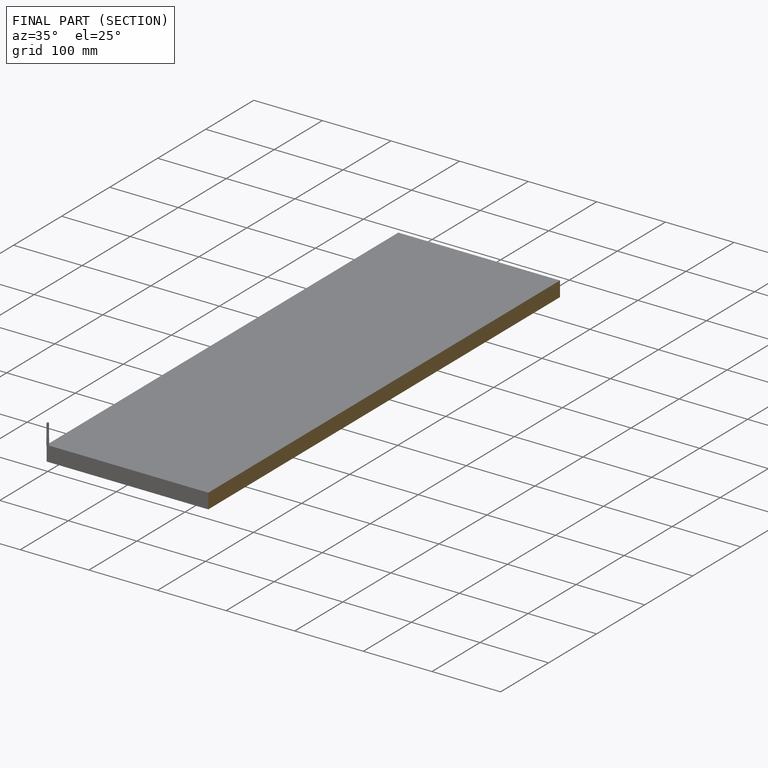
[diagram: finished part — half-section view (interior)]
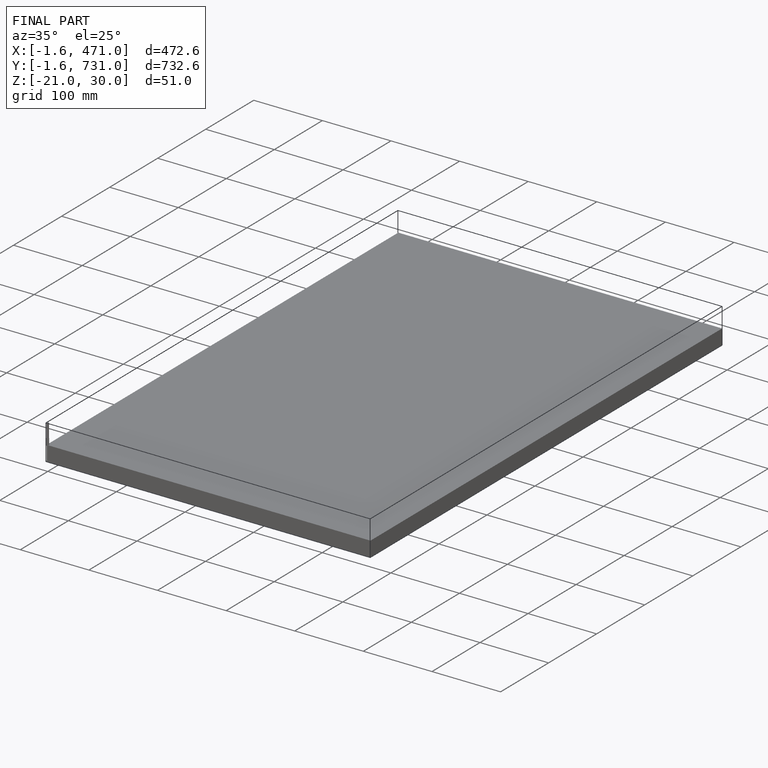
[diagram: finished part — iso view with bounding-box wireframe]
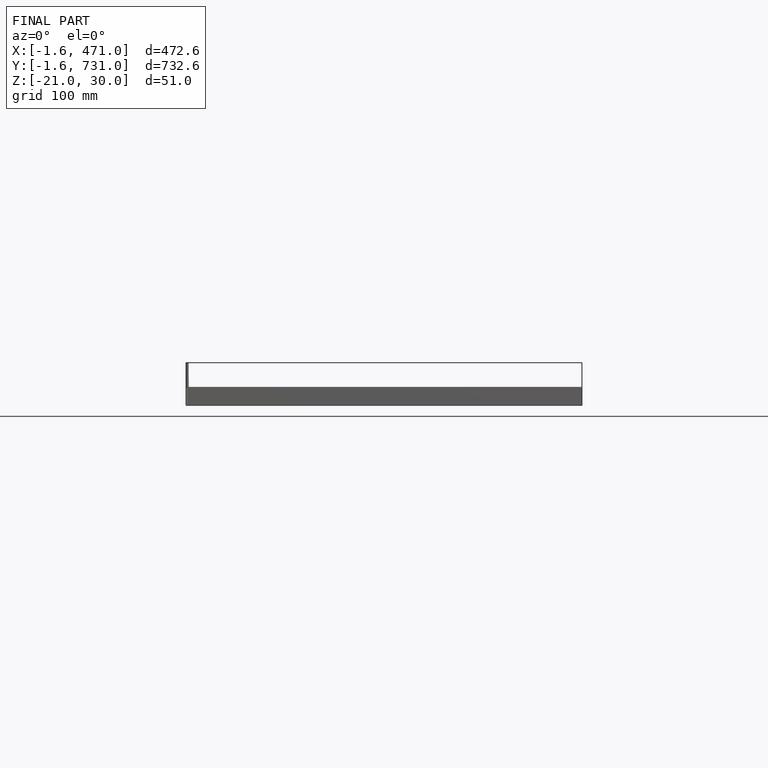
[diagram: finished part — front view with bounding-box wireframe]
